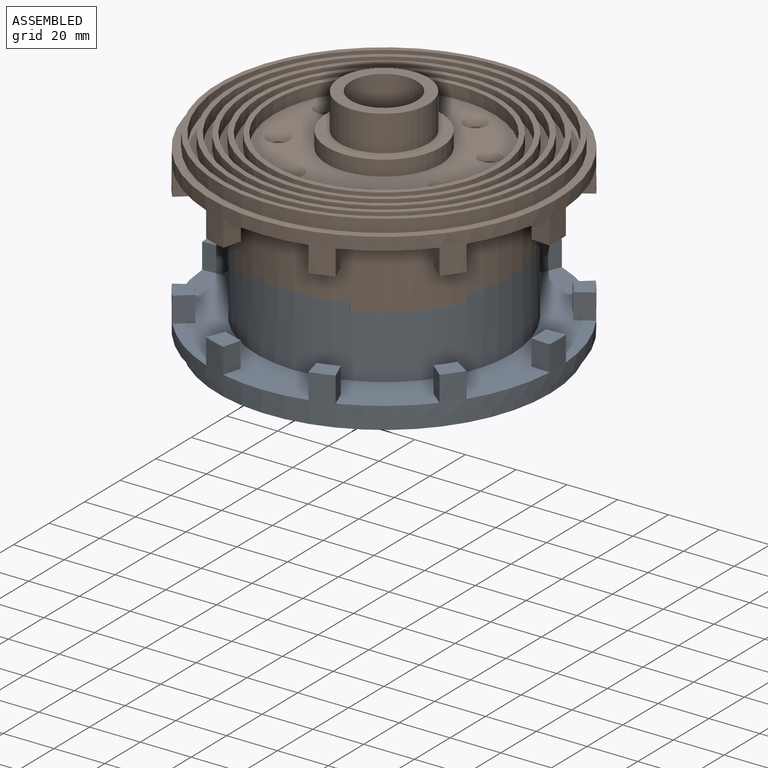
[diagram: assembled view]
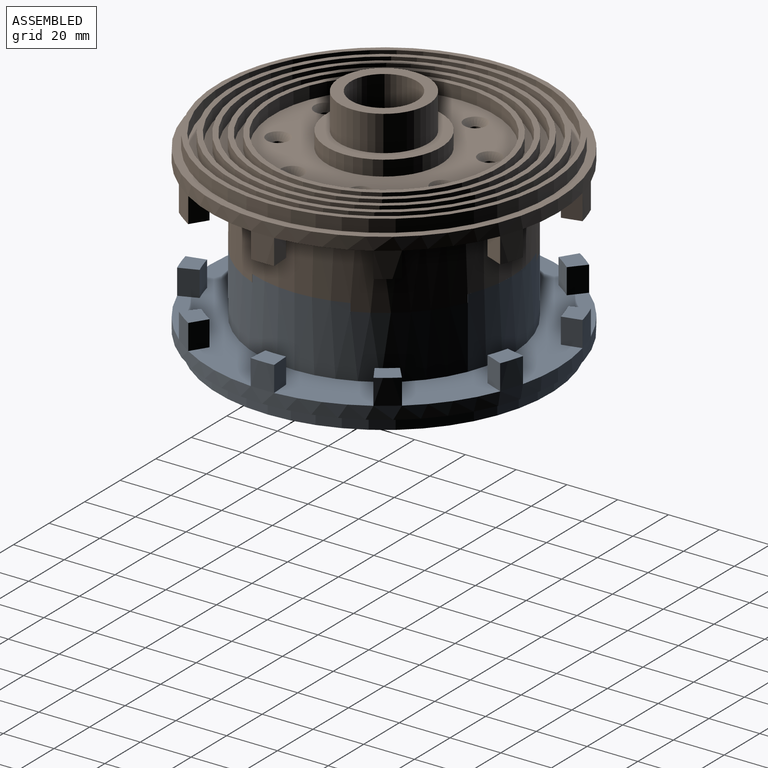
[diagram: assembled view, second angle]
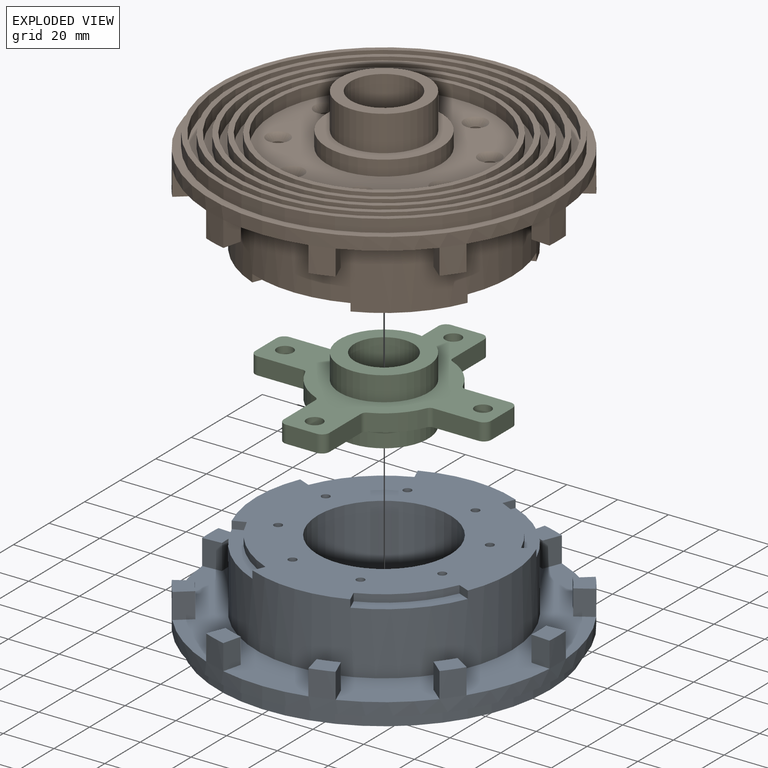
[diagram: exploded view]
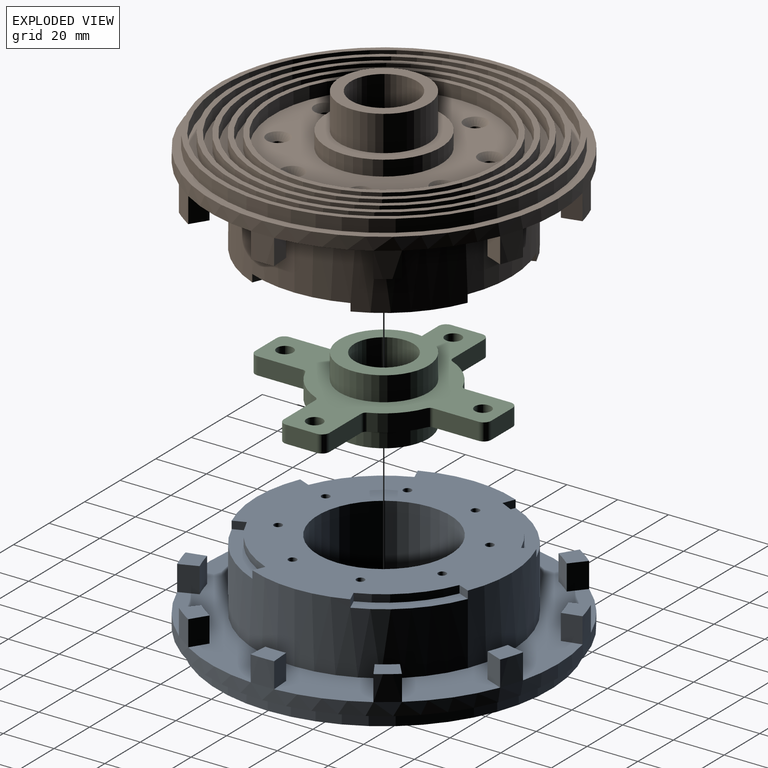
[diagram: exploded view, second angle]
ASSEMBLY  parts=3 mates=2
PART A: 95 faces, bbox 137.1x137.1x50.6 mm
  f0: cylinder r=50.35mm len=100.7mm, axis (0,0,-1), area 8257mm2, adj f1,f33,f79,f81,f82,f83,f85,f86
  f1: plane 100.7x100.7mm, normal (0,0,-1), area 5008.3mm2, adj f0,f69,f71,f72,f73,f74,f75,f76
  f2: cylinder r=68.57mm len=137.14mm, axis (0,0,-1), area 3075.7mm2, adj f3,f4,f5,f6,f7,f8,f9,f10
  f3: plane 10x7.45mm, normal (0.07,-1,0), area 74.7mm2, adj f2,f23,f33,f68
  f4: plane 10x6.32mm, normal (-0.53,0.85,0), area 74.7mm2, adj f2,f24,f33,f67
  f5: plane 10x5.74mm, normal (0.64,-0.77,0), area 74.7mm2, adj f2,f24,f33,f67
  f6: plane 10x6.93mm, normal (-0.93,0.37,0), area 74.7mm2, adj f2,f29,f33,f62
  f7: plane 10x6.93mm, normal (-0.93,-0.37,0), area 74.7mm2, adj f2,f25,f33,f66
  f8: plane 10x5.74mm, normal (0.64,0.77,0), area 74.7mm2, adj f2,f26,f33,f65
  f9: plane 10x6.32mm, normal (-0.53,-0.85,0), area 74.7mm2, adj f2,f26,f33,f65
  f10: plane 10x7.45mm, normal (0.07,1,0), area 74.7mm2, adj f2,f23,f33,f68
  f11: plane 10x7.24mm, normal (-0.97,0.24,0), area 74.7mm2, adj f2,f27,f33,f64
  f12: plane 10x7.24mm, normal (0.97,0.24,0), area 74.7mm2, adj f2,f25,f33,f66
  f13: plane 10x5.74mm, normal (-0.64,0.77,0), area 74.7mm2, adj f2,f28,f33,f63
  f14: plane 10x6.93mm, normal (0.93,-0.37,0), area 74.7mm2, adj f2,f27,f33,f64
  f15: plane 10x7.24mm, normal (0.97,-0.24,0), area 74.7mm2, adj f2,f29,f33,f62
  f16: plane 10x7.24mm, normal (-0.97,-0.24,0), area 74.7mm2, adj f2,f30,f33,f61
  f17: plane 10x6.93mm, normal (0.93,0.37,0), area 74.7mm2, adj f2,f30,f33,f61
  f18: plane 10x5.74mm, normal (-0.64,-0.77,0), area 74.7mm2, adj f2,f31,f33,f60
  f19: plane 10x6.32mm, normal (0.53,0.85,0), area 74.7mm2, adj f2,f31,f33,f60
  f20: plane 10x7.45mm, normal (-0.07,-1,0), area 74.7mm2, adj f2,f32,f33,f59
  f21: plane 10x7.45mm, normal (-0.07,1,0), area 74.7mm2, adj f2,f32,f33,f59
  f22: plane 10x6.32mm, normal (0.53,-0.85,0), area 74.7mm2, adj f2,f28,f33,f63
  f23: cylinder r=61.1mm len=10mm, axis (0,0,-1), area 82.1mm2, adj f3,f10,f33,f68
  f24: cylinder r=61.1mm len=10mm, axis (0,0,-1), area 82.1mm2, adj f4,f5,f33,f67
  f25: cylinder r=61.1mm len=10mm, axis (0,0,-1), area 82.1mm2, adj f7,f12,f33,f66
  f26: cylinder r=61.1mm len=10mm, axis (0,0,-1), area 82.1mm2, adj f8,f9,f33,f65
  f27: cylinder r=61.1mm len=10mm, axis (0,0,-1), area 82.1mm2, adj f11,f14,f33,f64
  f28: cylinder r=61.1mm len=10mm, axis (0,0,-1), area 82.1mm2, adj f13,f22,f33,f63
  f29: cylinder r=61.1mm len=10mm, axis (0,0,-1), area 82.1mm2, adj f6,f15,f33,f62
  f30: cylinder r=61.1mm len=10mm, axis (0,0,-1), area 82.1mm2, adj f16,f17,f33,f61
  f31: cylinder r=61.1mm len=10mm, axis (0,0,-1), area 82.1mm2, adj f18,f19,f33,f60
  f32: cylinder r=61.1mm len=10mm, axis (0,0,-1), area 82.1mm2, adj f20,f21,f33,f59
  f33: plane 137.14x136.83mm, normal (0,0,-1), area 6156.1mm2, adj f0,f2,f3,f4,f5,f6,f7,f8
  f34: plane 137.14x137.14mm, normal (0,0,1), area 1293.1mm2, adj f2,f35
  f35: cylinder r=65.5mm len=131mm, axis (0,0,1), area 2057.7mm2, adj f34,f36
  f36: plane 131x131mm, normal (0,0,1), area 810.5mm2, adj f35,f37
  f37: cylinder r=63.5mm len=127mm, axis (0,0,1), area 1994.9mm2, adj f36,f38
  f38: plane 127x127mm, normal (0,0,1), area 1168.7mm2, adj f37,f39
  f39: cylinder r=60.5mm len=121mm, axis (0,0,1), area 1900.7mm2, adj f38,f40
  f40: plane 121x121mm, normal (0,0,1), area 747.7mm2, adj f39,f41
  f41: cylinder r=58.5mm len=117mm, axis (0,0,1), area 1837.8mm2, adj f40,f42
  f42: plane 117x117mm, normal (0,0,1), area 1074.4mm2, adj f41,f43
  f43: cylinder r=55.5mm len=111mm, axis (0,0,1), area 1743.6mm2, adj f42,f44
  f44: plane 111x111mm, normal (0,0,1), area 684.9mm2, adj f43,f45
  f45: cylinder r=53.5mm len=107mm, axis (0,0,1), area 1680.8mm2, adj f44,f46
  f46: plane 107x107mm, normal (0,0,1), area 980.2mm2, adj f45,f47
  f47: cylinder r=50.5mm len=101mm, axis (0,0,1), area 1586.5mm2, adj f46,f48
  f48: plane 101x101mm, normal (0,0,1), area 622mm2, adj f47,f49
  f49: cylinder r=48.5mm len=97mm, axis (0,0,1), area 1523.7mm2, adj f48,f50
  f50: plane 97x97mm, normal (0,0,1), area 885.9mm2, adj f49,f51
  f51: cylinder r=45.5mm len=91mm, axis (0,0,1), area 1429.4mm2, adj f50,f52
  f52: plane 91x91mm, normal (0,0,1), area 559.2mm2, adj f51,f54
  f53: plane 87x87mm, normal (0,0,1), area 5349.4mm2, adj f54,f55,f71,f72,f73,f74,f75,f76
  f54: cylinder r=43.5mm len=87mm, axis (0,0,1), area 1366.6mm2, adj f52,f53
  f55: cylinder r=13mm len=26mm, axis (0,0,-1), area 490.1mm2, adj f53,f56
  f56: plane 26x26mm, normal (0,0,1), area 216.8mm2, adj f55,f57
  f57: cylinder r=10mm len=20mm, axis (0,0,-1), area 754mm2, adj f56,f58
  f58: plane 20x20mm, normal (0,0,1), area 314.2mm2, adj f57
  f59: plane 9.21x7.61mm, normal (0,0,-1), area 65.1mm2, adj f2,f20,f21,f32
  f60: plane 11.42x11.15mm, normal (0,0,-1), area 65.1mm2, adj f2,f18,f19,f31
  f61: plane 10.58x9.78mm, normal (0,0,-1), area 65.1mm2, adj f2,f16,f17,f30
  f62: plane 10.58x9.78mm, normal (0,0,-1), area 65.1mm2, adj f2,f6,f15,f29
  f63: plane 11.42x11.15mm, normal (0,0,-1), area 65.1mm2, adj f2,f13,f22,f28
  f64: plane 10.58x9.78mm, normal (0,0,-1), area 65.1mm2, adj f2,f11,f14,f27
  f65: plane 11.42x11.15mm, normal (0,0,-1), area 65.1mm2, adj f2,f8,f9,f26
  f66: plane 10.58x9.78mm, normal (0,0,-1), area 65.1mm2, adj f2,f7,f12,f25
  f67: plane 11.42x11.15mm, normal (0,0,-1), area 65.1mm2, adj f2,f4,f5,f24
  f68: plane 9.21x7.61mm, normal (0,0,-1), area 65.1mm2, adj f2,f3,f10,f23
  f69: cylinder r=26.1mm len=52.2mm, axis (0,0,-1), area 4526.2mm2, adj f1,f70
  f70: plane 52.2x52.2mm, normal (0,0,-1), area 2140.1mm2, adj f69
  f71: cylinder r=1.6mm len=32.6mm, axis (0,0,1), area 327.7mm2, adj f1,f53
  f72: cylinder r=1.6mm len=32.6mm, axis (0,0,1), area 327.7mm2, adj f1,f53
  f73: cylinder r=1.6mm len=32.6mm, axis (0,0,1), area 327.7mm2, adj f1,f53
  f74: cylinder r=1.6mm len=32.6mm, axis (0,0,1), area 327.7mm2, adj f1,f53
  f75: cylinder r=1.6mm len=32.6mm, axis (0,0,1), area 327.7mm2, adj f1,f53
  f76: cylinder r=1.6mm len=32.6mm, axis (0,0,1), area 327.7mm2, adj f1,f53
  f77: cylinder r=1.6mm len=32.6mm, axis (0,0,1), area 327.7mm2, adj f1,f53
  f78: cylinder r=1.6mm len=32.6mm, axis (0,0,1), area 327.7mm2, adj f1,f53
  f79: plane 4.62x3mm, normal (0.92,0.38,0), area 15mm2, adj f0,f1,f80,f82
  f80: cylinder r=45.35mm len=24.54mm, axis (0,0,-1), area 106.9mm2, adj f1,f79,f81,f82
  f81: plane 4.62x3mm, normal (-0.38,-0.92,0), area 15mm2, adj f0,f1,f80,f82
  f82: plane 29.16x29.16mm, normal (0,0,-1), area 187.9mm2, adj f0,f79,f80,f81
  f83: plane 4.62x3mm, normal (-0.92,-0.38,0), area 15mm2, adj f0,f1,f84,f86
  f84: cylinder r=45.35mm len=24.54mm, axis (0,0,-1), area 106.9mm2, adj f1,f83,f85,f86
  f85: plane 4.62x3mm, normal (0.38,0.92,0), area 15mm2, adj f0,f1,f84,f86
  f86: plane 29.16x29.16mm, normal (0,0,-1), area 187.9mm2, adj f0,f83,f84,f85
  f87: cylinder r=45.35mm len=24.54mm, axis (0,0,-1), area 106.9mm2, adj f1,f88,f89,f90
  f88: plane 4.62x3mm, normal (0.92,-0.38,0), area 15mm2, adj f0,f1,f87,f90
  f89: plane 4.62x3mm, normal (-0.38,0.92,0), area 15mm2, adj f0,f1,f87,f90
  f90: plane 29.16x29.16mm, normal (0,0,-1), area 187.9mm2, adj f0,f87,f88,f89
  f91: plane 4.62x3mm, normal (0.38,-0.92,0), area 15mm2, adj f0,f1,f92,f94
  f92: cylinder r=45.35mm len=24.54mm, axis (0,0,-1), area 106.9mm2, adj f1,f91,f93,f94
  f93: plane 4.62x3mm, normal (-0.92,0.38,0), area 15mm2, adj f0,f1,f92,f94
  f94: plane 29.16x29.16mm, normal (0,0,-1), area 187.9mm2, adj f0,f91,f92,f93
PART B: 144 faces, bbox 137.1x137.1x55.6 mm
  f0: plane 100.7x100.7mm, normal (0,0,-1), area 3449.7mm2, adj f33,f69,f72,f73,f74,f75,f76,f77
  f1: cylinder r=68.57mm len=137.14mm, axis (0,0,-1), area 3075.7mm2, adj f2,f3,f4,f5,f6,f7,f8,f9
  f2: plane 10x7.45mm, normal (0.07,-1,0), area 74.7mm2, adj f1,f22,f32,f68
  f3: plane 10x6.32mm, normal (-0.53,0.85,0), area 74.7mm2, adj f1,f23,f32,f67
  f4: plane 10x5.74mm, normal (0.64,-0.77,0), area 74.7mm2, adj f1,f23,f32,f67
  f5: plane 10x6.93mm, normal (-0.93,0.37,0), area 74.7mm2, adj f1,f28,f32,f62
  f6: plane 10x6.93mm, normal (-0.93,-0.37,0), area 74.7mm2, adj f1,f24,f32,f66
  f7: plane 10x5.74mm, normal (0.64,0.77,0), area 74.7mm2, adj f1,f25,f32,f65
  f8: plane 10x6.32mm, normal (-0.53,-0.85,0), area 74.7mm2, adj f1,f25,f32,f65
  f9: plane 10x7.45mm, normal (0.07,1,0), area 74.7mm2, adj f1,f22,f32,f68
  f10: plane 10x7.24mm, normal (-0.97,0.24,0), area 74.7mm2, adj f1,f26,f32,f64
  f11: plane 10x7.24mm, normal (0.97,0.24,0), area 74.7mm2, adj f1,f24,f32,f66
  f12: plane 10x5.74mm, normal (-0.64,0.77,0), area 74.7mm2, adj f1,f27,f32,f63
  f13: plane 10x6.93mm, normal (0.93,-0.37,0), area 74.7mm2, adj f1,f26,f32,f64
  f14: plane 10x7.24mm, normal (0.97,-0.24,0), area 74.7mm2, adj f1,f28,f32,f62
  f15: plane 10x7.24mm, normal (-0.97,-0.24,0), area 74.7mm2, adj f1,f29,f32,f61
  f16: plane 10x6.93mm, normal (0.93,0.37,0), area 74.7mm2, adj f1,f29,f32,f61
  f17: plane 10x5.74mm, normal (-0.64,-0.77,0), area 74.7mm2, adj f1,f30,f32,f60
  f18: plane 10x6.32mm, normal (0.53,0.85,0), area 74.7mm2, adj f1,f30,f32,f60
  f19: plane 10x7.45mm, normal (-0.07,-1,0), area 74.7mm2, adj f1,f31,f32,f59
  f20: plane 10x7.45mm, normal (-0.07,1,0), area 74.7mm2, adj f1,f31,f32,f59
  f21: plane 10x6.32mm, normal (0.53,-0.85,0), area 74.7mm2, adj f1,f27,f32,f63
  f22: cylinder r=61.1mm len=10mm, axis (0,0,-1), area 82.1mm2, adj f2,f9,f32,f68
  f23: cylinder r=61.1mm len=10mm, axis (0,0,-1), area 82.1mm2, adj f3,f4,f32,f67
  f24: cylinder r=61.1mm len=10mm, axis (0,0,-1), area 82.1mm2, adj f6,f11,f32,f66
  f25: cylinder r=61.1mm len=10mm, axis (0,0,-1), area 82.1mm2, adj f7,f8,f32,f65
  f26: cylinder r=61.1mm len=10mm, axis (0,0,-1), area 82.1mm2, adj f10,f13,f32,f64
  f27: cylinder r=61.1mm len=10mm, axis (0,0,-1), area 82.1mm2, adj f12,f21,f32,f63
  f28: cylinder r=61.1mm len=10mm, axis (0,0,-1), area 82.1mm2, adj f5,f14,f32,f62
  f29: cylinder r=61.1mm len=10mm, axis (0,0,-1), area 82.1mm2, adj f15,f16,f32,f61
  f30: cylinder r=61.1mm len=10mm, axis (0,0,-1), area 82.1mm2, adj f17,f18,f32,f60
  f31: cylinder r=61.1mm len=10mm, axis (0,0,-1), area 82.1mm2, adj f19,f20,f32,f59
  f32: plane 137.14x136.83mm, normal (0,0,-1), area 6156.1mm2, adj f1,f2,f3,f4,f5,f6,f7,f8
  f33: cylinder r=50.35mm len=100.7mm, axis (0,0,-1), area 9203.6mm2, adj f0,f32,f128,f130,f131,f132,f134,f135
  f34: plane 137.14x137.14mm, normal (0,0,1), area 1293.1mm2, adj f1,f35
  f35: cylinder r=65.5mm len=131mm, axis (0,0,1), area 2057.7mm2, adj f34,f36
  f36: plane 131x131mm, normal (0,0,1), area 810.5mm2, adj f35,f37
  f37: cylinder r=63.5mm len=127mm, axis (0,0,1), area 1994.9mm2, adj f36,f38
  f38: plane 127x127mm, normal (0,0,1), area 1168.7mm2, adj f37,f39
  f39: cylinder r=60.5mm len=121mm, axis (0,0,1), area 1900.7mm2, adj f38,f40
  f40: plane 121x121mm, normal (0,0,1), area 747.7mm2, adj f39,f41
  f41: cylinder r=58.5mm len=117mm, axis (0,0,1), area 1837.8mm2, adj f40,f42
  f42: plane 117x117mm, normal (0,0,1), area 1074.4mm2, adj f41,f43
  f43: cylinder r=55.5mm len=111mm, axis (0,0,1), area 1743.6mm2, adj f42,f44
  f44: plane 111x111mm, normal (0,0,1), area 684.9mm2, adj f43,f45
  f45: cylinder r=53.5mm len=107mm, axis (0,0,1), area 1680.8mm2, adj f44,f46
  f46: plane 107x107mm, normal (0,0,1), area 980.2mm2, adj f45,f47
  f47: cylinder r=50.5mm len=101mm, axis (0,0,1), area 1586.5mm2, adj f46,f48
  f48: plane 101x101mm, normal (0,0,1), area 622mm2, adj f47,f49
  f49: cylinder r=48.5mm len=97mm, axis (0,0,1), area 1523.7mm2, adj f48,f50
  f50: plane 97x97mm, normal (0,0,1), area 885.9mm2, adj f49,f51
  f51: cylinder r=45.5mm len=91mm, axis (0,0,1), area 1429.4mm2, adj f50,f52
  f52: plane 91x91mm, normal (0,0,1), area 559.2mm2, adj f51,f54
  f53: plane 87x87mm, normal (0,0,1), area 3849.8mm2, adj f54,f55,f112,f114,f116,f118,f120,f122
  f54: cylinder r=43.5mm len=87mm, axis (0,0,1), area 1366.6mm2, adj f52,f53
  f55: cylinder r=22.5mm len=45mm, axis (0,0,-1), area 848.2mm2, adj f53,f56
  f56: plane 45x45mm, normal (0,0,1), area 628.3mm2, adj f55,f57
  f57: cylinder r=17.5mm len=35mm, axis (0,0,-1), area 1539.4mm2, adj f56,f58
  f58: plane 35x35mm, normal (0,0,1), area 431.2mm2, adj f57,f127
  f59: plane 9.21x7.61mm, normal (0,0,-1), area 65.1mm2, adj f1,f19,f20,f31
  f60: plane 11.42x11.15mm, normal (0,0,-1), area 65.1mm2, adj f1,f17,f18,f30
  f61: plane 10.58x9.78mm, normal (0,0,-1), area 65.1mm2, adj f1,f15,f16,f29
  f62: plane 10.58x9.78mm, normal (0,0,-1), area 65.1mm2, adj f1,f5,f14,f28
  f63: plane 11.42x11.15mm, normal (0,0,-1), area 65.1mm2, adj f1,f12,f21,f27
  f64: plane 10.58x9.78mm, normal (0,0,-1), area 65.1mm2, adj f1,f10,f13,f26
  f65: plane 11.42x11.15mm, normal (0,0,-1), area 65.1mm2, adj f1,f7,f8,f25
  f66: plane 10.58x9.78mm, normal (0,0,-1), area 65.1mm2, adj f1,f6,f11,f24
  f67: plane 11.42x11.15mm, normal (0,0,-1), area 65.1mm2, adj f1,f3,f4,f23
  f68: plane 9.21x7.61mm, normal (0,0,-1), area 65.1mm2, adj f1,f2,f9,f22
  f69: cylinder r=26.1mm len=52.2mm, axis (0,0,-1), area 3899.4mm2, adj f0,f70,f71,f77,f78,f79,f85,f86
  f70: plane 52.2x52.2mm, normal (0,0,-1), area 1609.2mm2, adj f69,f127
  f71: plane 22.86x21.71mm, normal (0,0,-1), area 362.9mm2, adj f69,f72,f73,f74,f75,f76,f77,f78
  f72: plane 18.14x7mm, normal (0,-1,0), area 126.9mm2, adj f0,f71,f73,f77
  f73: cylinder r=2mm len=7mm, axis (0,0,-1), area 22mm2, adj f0,f71,f72,f74
  f74: plane 14.2x7mm, normal (1,0,0), area 99.4mm2, adj f0,f71,f73,f75
  f75: cylinder r=2mm len=7mm, axis (0,0,-1), area 22mm2, adj f0,f71,f74,f76
  f76: plane 18.14x7mm, normal (0,1,0), area 126.9mm2, adj f0,f71,f75,f78
  f77: cylinder r=3mm len=7mm, axis (0,0,-1), area 24mm2, adj f0,f69,f71,f72
  f78: cylinder r=3mm len=7mm, axis (0,0,-1), area 24mm2, adj f0,f69,f71,f76
  f79: plane 22.86x21.71mm, normal (0,0,-1), area 362.9mm2, adj f69,f80,f81,f82,f83,f84,f85,f86
  f80: plane 18.14x7mm, normal (-1,0,0), area 126.9mm2, adj f0,f79,f81,f85
  f81: cylinder r=2mm len=7mm, axis (0,0,-1), area 22mm2, adj f0,f79,f80,f82
  f82: plane 14.2x7mm, normal (0,-1,0), area 99.4mm2, adj f0,f79,f81,f83
  f83: cylinder r=2mm len=7mm, axis (0,0,-1), area 22mm2, adj f0,f79,f82,f84
  f84: plane 18.14x7mm, normal (1,0,0), area 126.9mm2, adj f0,f79,f83,f86
  f85: cylinder r=3mm len=7mm, axis (0,0,-1), area 24mm2, adj f0,f69,f79,f80
  f86: cylinder r=3mm len=7mm, axis (0,0,-1), area 24mm2, adj f0,f69,f79,f84
  f87: plane 22.86x21.71mm, normal (0,0,-1), area 362.9mm2, adj f69,f88,f89,f90,f91,f92,f93,f94
  f88: plane 18.14x7mm, normal (0,1,0), area 126.9mm2, adj f0,f87,f89,f94
  f89: cylinder r=2mm len=7mm, axis (0,0,-1), area 22mm2, adj f0,f87,f88,f90
  f90: plane 14.2x7mm, normal (-1,0,0), area 99.4mm2, adj f0,f87,f89,f91
  f91: cylinder r=2mm len=7mm, axis (0,0,-1), area 22mm2, adj f0,f87,f90,f92
  f92: plane 18.14x7mm, normal (0,-1,0), area 126.9mm2, adj f0,f87,f91,f93
  f93: cylinder r=3mm len=7mm, axis (0,0,-1), area 24mm2, adj f0,f69,f87,f92
  f94: cylinder r=3mm len=7mm, axis (0,0,-1), area 24mm2, adj f0,f69,f87,f88
  f95: plane 22.86x21.71mm, normal (0,0,-1), area 362.9mm2, adj f69,f96,f97,f98,f99,f100,f101,f102
  f96: cylinder r=3mm len=7mm, axis (0,0,-1), area 24mm2, adj f0,f69,f95,f97
  f97: plane 18.14x7mm, normal (-1,0,0), area 126.9mm2, adj f0,f95,f96,f98
  f98: cylinder r=2mm len=7mm, axis (0,0,-1), area 22mm2, adj f0,f95,f97,f99
  f99: plane 14.2x7mm, normal (0,1,0), area 99.4mm2, adj f0,f95,f98,f100
  f100: cylinder r=2mm len=7mm, axis (0,0,-1), area 22mm2, adj f0,f95,f99,f101
  f101: plane 18.14x7mm, normal (1,0,0), area 126.9mm2, adj f0,f95,f100,f102
  f102: cylinder r=3mm len=7mm, axis (0,0,-1), area 24mm2, adj f0,f69,f95,f101
  f103: cylinder r=2.5mm len=12mm, axis (0,0,-1), area 188.5mm2, adj f87,f104
  f104: cone r=0mm half-angle=59deg, axis (0,0,-1), area 22.9mm2, adj f103
  f105: cylinder r=2.5mm len=12mm, axis (0,0,-1), area 188.5mm2, adj f79,f106
  f106: cone r=0mm half-angle=59deg, axis (0,0,-1), area 22.9mm2, adj f105
  f107: cylinder r=2.5mm len=12mm, axis (0,0,-1), area 188.5mm2, adj f71,f108
  f108: cone r=0mm half-angle=59deg, axis (0,0,-1), area 22.9mm2, adj f107
  f109: cylinder r=2.5mm len=12mm, axis (0,0,-1), area 188.5mm2, adj f95,f110
  f110: cone r=0mm half-angle=59deg, axis (0,0,-1), area 22.9mm2, adj f109
  f111: cylinder r=2.1mm len=30.22mm, axis (0,0,1), area 398.7mm2, adj f0,f112
  f112: cone r=2.1mm half-angle=45deg, axis (0,0,1), area 69.6mm2, adj f53,f111
  f113: cylinder r=2.1mm len=30.22mm, axis (0,0,1), area 398.7mm2, adj f0,f114
  f114: cone r=2.1mm half-angle=45deg, axis (0,0,1), area 69.6mm2, adj f53,f113
  f115: cylinder r=2.1mm len=30.22mm, axis (0,0,1), area 398.7mm2, adj f0,f116
  f116: cone r=2.1mm half-angle=45deg, axis (0,0,1), area 69.6mm2, adj f53,f115
  f117: cylinder r=2.1mm len=30.22mm, axis (0,0,1), area 398.7mm2, adj f0,f118
  f118: cone r=2.1mm half-angle=45deg, axis (0,0,1), area 69.6mm2, adj f53,f117
  f119: cylinder r=2.1mm len=30.22mm, axis (0,0,1), area 398.7mm2, adj f0,f120
  f120: cone r=2.1mm half-angle=45deg, axis (0,0,1), area 69.6mm2, adj f53,f119
  f121: cylinder r=2.1mm len=30.22mm, axis (0,0,1), area 398.7mm2, adj f0,f122
  f122: cone r=2.1mm half-angle=45deg, axis (0,0,1), area 69.6mm2, adj f53,f121
  f123: cylinder r=2.1mm len=30.22mm, axis (0,0,1), area 398.7mm2, adj f0,f124
  f124: cone r=2.1mm half-angle=45deg, axis (0,0,1), area 69.6mm2, adj f53,f123
  f125: cylinder r=2.1mm len=30.22mm, axis (0,0,1), area 398.7mm2, adj f0,f126
  f126: cone r=2.1mm half-angle=45deg, axis (0,0,1), area 69.6mm2, adj f53,f125
  f127: cylinder r=13mm len=26mm, axis (0,0,1), area 2042mm2, adj f58,f70
  f128: plane 4.53x3mm, normal (-0.92,-0.38,0), area 14.7mm2, adj f0,f33,f129,f131
  f129: cylinder r=45.45mm len=24.47mm, axis (0,0,1), area 106.5mm2, adj f0,f128,f130,f131
  f130: plane 4.53x3mm, normal (0.38,0.92,0), area 14.7mm2, adj f0,f33,f129,f131
  f131: plane 28.99x28.99mm, normal (0,0,-1), area 183.4mm2, adj f33,f128,f129,f130
  f132: plane 4.53x3mm, normal (-0.38,0.92,0), area 14.7mm2, adj f0,f33,f133,f135
  f133: cylinder r=45.45mm len=24.47mm, axis (0,0,1), area 106.5mm2, adj f0,f132,f134,f135
  f134: plane 4.53x3mm, normal (0.92,-0.38,0), area 14.7mm2, adj f0,f33,f133,f135
  f135: plane 28.99x28.99mm, normal (0,0,-1), area 183.4mm2, adj f33,f132,f133,f134
  f136: cylinder r=45.45mm len=24.47mm, axis (0,0,1), area 106.5mm2, adj f0,f137,f138,f139
  f137: plane 4.53x3mm, normal (-0.92,0.38,0), area 14.7mm2, adj f0,f33,f136,f139
  f138: plane 4.53x3mm, normal (0.38,-0.92,0), area 14.7mm2, adj f0,f33,f136,f139
  f139: plane 28.99x28.99mm, normal (0,0,-1), area 183.4mm2, adj f33,f136,f137,f138
  f140: plane 4.53x3mm, normal (0.92,0.38,0), area 14.7mm2, adj f0,f33,f141,f143
  f141: cylinder r=45.45mm len=24.47mm, axis (0,0,1), area 106.5mm2, adj f0,f140,f142,f143
  f142: plane 4.53x3mm, normal (-0.38,-0.92,0), area 14.7mm2, adj f0,f33,f141,f143
  f143: plane 28.99x28.99mm, normal (0,0,-1), area 183.4mm2, adj f33,f140,f141,f142
PART C: 47 faces, bbox 93x93x26 mm
  f0: plane 93x93mm, normal (0,0,-1), area 2534.1mm2, adj f1,f2,f3,f4,f5,f6,f7,f8
  f1: cylinder r=3mm len=6.8mm, axis (0,0,1), area 32mm2, adj f0,f2,f32,f33
  f2: plane 12x6.8mm, normal (0,1,0), area 81.6mm2, adj f0,f1,f3,f33
  f3: cylinder r=3mm len=6.8mm, axis (0,0,1), area 32mm2, adj f0,f2,f4,f33
  f4: plane 17.75x6.8mm, normal (1,0,0), area 120.7mm2, adj f0,f3,f5,f33
  f5: cylinder r=2mm len=6.8mm, axis (0,0,1), area 15.9mm2, adj f0,f4,f6,f33
  f6: cylinder r=26mm len=13.7mm, axis (0,0,1), area 135mm2, adj f0,f5,f7,f33
  f7: cylinder r=2mm len=6.8mm, axis (0,0,1), area 15.9mm2, adj f0,f6,f8,f33
  f8: plane 17.75x6.8mm, normal (0,1,0), area 120.7mm2, adj f0,f7,f9,f33
  f9: cylinder r=3mm len=6.8mm, axis (0,0,1), area 32mm2, adj f0,f8,f10,f33
  f10: plane 12x6.8mm, normal (1,0,0), area 81.6mm2, adj f0,f9,f11,f33
  f11: cylinder r=3mm len=6.8mm, axis (0,0,1), area 32mm2, adj f0,f10,f12,f33
  f12: plane 17.75x6.8mm, normal (0,-1,0), area 120.7mm2, adj f0,f11,f13,f33
  f13: cylinder r=2mm len=6.8mm, axis (0,0,1), area 15.9mm2, adj f0,f12,f14,f33
  f14: cylinder r=26mm len=13.7mm, axis (0,0,1), area 135mm2, adj f0,f13,f15,f33
  f15: cylinder r=2mm len=6.8mm, axis (0,0,1), area 15.9mm2, adj f0,f14,f16,f33
  f16: plane 17.75x6.8mm, normal (1,0,0), area 120.7mm2, adj f0,f15,f17,f33
  f17: cylinder r=3mm len=6.8mm, axis (0,0,1), area 32mm2, adj f0,f16,f18,f33
  f18: plane 12x6.8mm, normal (0,-1,0), area 81.6mm2, adj f0,f17,f19,f33
  f19: cylinder r=3mm len=6.8mm, axis (0,0,1), area 32mm2, adj f0,f18,f20,f33
  f20: plane 17.75x6.8mm, normal (-1,0,0), area 120.7mm2, adj f0,f19,f21,f33
  f21: cylinder r=2mm len=6.8mm, axis (0,0,1), area 15.9mm2, adj f0,f20,f22,f33
  f22: cylinder r=26mm len=13.7mm, axis (0,0,1), area 135mm2, adj f0,f21,f23,f33
  f23: cylinder r=2mm len=6.8mm, axis (0,0,1), area 15.9mm2, adj f0,f22,f24,f33
  f24: plane 17.75x6.8mm, normal (0,-1,0), area 120.7mm2, adj f0,f23,f25,f33
  f25: cylinder r=3mm len=6.8mm, axis (0,0,1), area 32mm2, adj f0,f24,f26,f33
  f26: plane 12x6.8mm, normal (-1,0,0), area 81.6mm2, adj f0,f25,f27,f33
  f27: cylinder r=3mm len=6.8mm, axis (0,0,1), area 32mm2, adj f0,f26,f28,f33
  f28: plane 17.75x6.8mm, normal (0,1,0), area 120.7mm2, adj f0,f27,f29,f33
  f29: cylinder r=2mm len=6.8mm, axis (0,0,1), area 15.9mm2, adj f0,f28,f30,f33
  f30: cylinder r=26mm len=13.7mm, axis (0,0,1), area 135mm2, adj f0,f29,f31,f33
  f31: cylinder r=2mm len=6.8mm, axis (0,0,1), area 15.9mm2, adj f0,f30,f32,f33
  f32: plane 17.75x6.8mm, normal (-1,0,0), area 120.7mm2, adj f0,f1,f31,f33
  f33: plane 93x93mm, normal (0,0,1), area 2095.3mm2, adj f1,f2,f3,f4,f5,f6,f7,f8
  f34: cylinder r=17.5mm len=35mm, axis (0,0,1), area 1055.6mm2, adj f33,f35
  f35: plane 35x35mm, normal (0,0,1), area 539.4mm2, adj f34,f36
  f36: cylinder r=11.6mm len=26mm, axis (0,0,1), area 1895mm2, adj f35,f37
  f37: plane 35x35mm, normal (0,0,-1), area 539.4mm2, adj f36,f38
  f38: cylinder r=17.5mm len=35mm, axis (0,0,-1), area 1055.6mm2, adj f0,f37
  f39: cone r=4.96mm half-angle=45deg, axis (0,0,1), area 155.1mm2, adj f33,f40
  f40: cylinder r=3.2mm len=6.4mm, axis (0,0,1), area 65.9mm2, adj f0,f39
  f41: cone r=4.96mm half-angle=45deg, axis (0,0,1), area 155.1mm2, adj f33,f42
  f42: cylinder r=3.2mm len=6.4mm, axis (0,0,1), area 65.9mm2, adj f0,f41
  f43: cone r=4.96mm half-angle=45deg, axis (0,0,1), area 155.1mm2, adj f33,f44
  f44: cylinder r=3.2mm len=6.4mm, axis (0,0,1), area 65.9mm2, adj f0,f43
  f45: cone r=4.96mm half-angle=45deg, axis (0,0,1), area 155.1mm2, adj f33,f46
  f46: cylinder r=3.2mm len=6.4mm, axis (0,0,1), area 65.9mm2, adj f0,f45
PLACE A rot(axis=(1,0,0),180deg) t=(0,0,-52.6)mm
PLACE B t=(0,0,-52.6)mm
PLACE C rot(axis=(-0.71,0.71,0),180deg) t=(0,0,-45.6)mm
MATE fastened A.f35 <-> B.f133  axis (0,0,1) through (0,0,-52.6)mm
MATE fastened B.f109 <-> C.f45  axis (0,0,-1) through (0,-39,-45.6)mm
